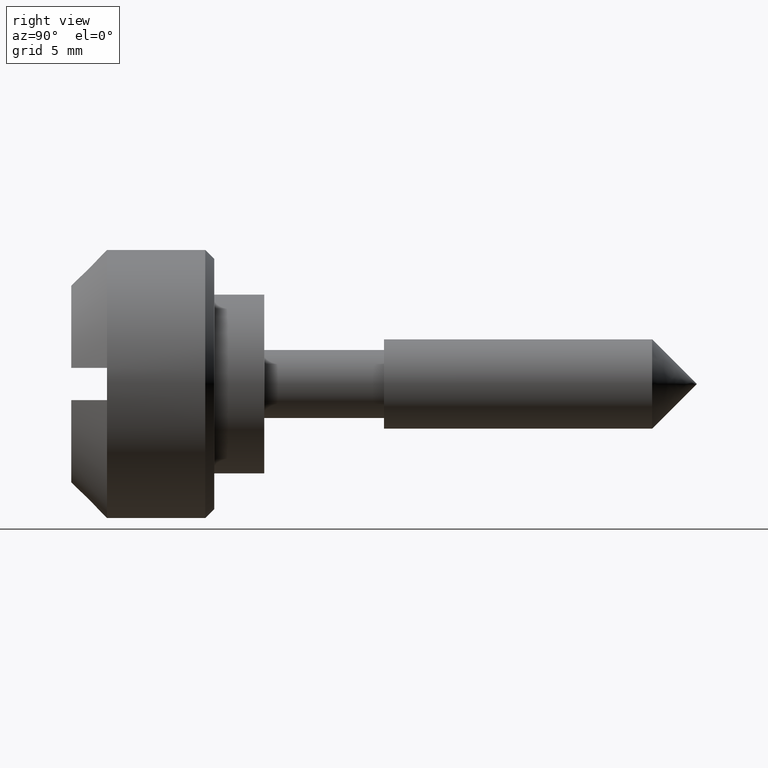
[diagram: clean part render]
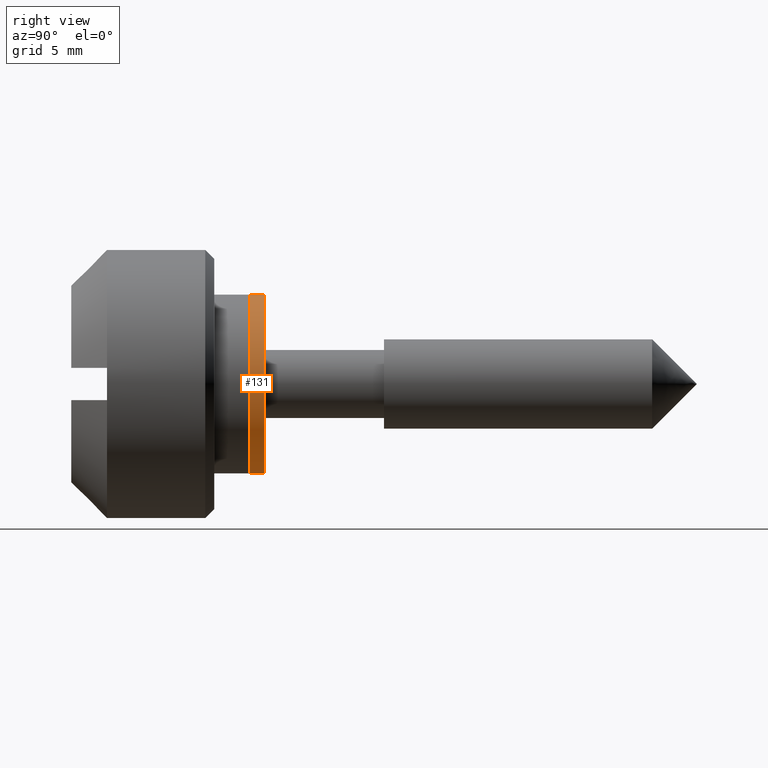
[diagram: same view with one face highlighted and labeled with its STEP entity id]
A machine part, right view. The second image highlights one B-rep face of the part: STEP entity #131.
In plain terms, the highlighted cylindrical surface (partial cylindrical patch) has radius 5 mm, axis along (0, 1, 0).
Its self-contained STEP definition (entity closure, byte-faithful):
#131=ADVANCED_FACE('',(#347),#346,.T.);
#346=CYLINDRICAL_SURFACE('',#679,5.00000000000E+00);
#347=FACE_OUTER_BOUND('',#680,.T.);
#676=CARTESIAN_POINT('',(0.00000000000E+00,1.00000000000E+03,0.00000000000E+00));
#677=DIRECTION('',(-0.00000000000E+00,1.00000000000E+00,-0.00000000000E+00));
#678=DIRECTION('',(1.22464679915E-16,0.00000000000E+00,-1.00000000000E+00));
#679=AXIS2_PLACEMENT_3D('',#676,#677,#678);
#680=EDGE_LOOP('',(#934,#935,#936,#937));
#934=ORIENTED_EDGE('',*,*,#1074,.F.);
#935=ORIENTED_EDGE('',*,*,#1078,.T.);
#936=ORIENTED_EDGE('',*,*,#1036,.T.);
#937=ORIENTED_EDGE('',*,*,#1079,.F.);
#1036=EDGE_CURVE('',#1192,#1193,#1194,.T.);
#1074=EDGE_CURVE('',#1440,#1439,#1447,.T.);
#1078=EDGE_CURVE('',#1440,#1192,#1472,.T.);
#1079=EDGE_CURVE('',#1439,#1193,#1478,.T.);
#1192=VERTEX_POINT('',#1817);
#1193=VERTEX_POINT('',#1818);
#1194=CIRCLE('',#1822,5.00000000000E+00);
#1439=VERTEX_POINT('',#1966);
#1440=VERTEX_POINT('',#1967);
#1447=CIRCLE('',#1975,5.00000000000E+00);
#1472=(BOUNDED_CURVE() B_SPLINE_CURVE(1,(#1987,#1988),.UNSPECIFIED.,.F.,.F.) B_SPLINE_CURVE_WITH_KNOTS((2,2),(8.33332935974E-02,9.16666633252E-01),.UNSPECIFIED.) CURVE() GEOMETRIC_REPRESENTATION_ITEM() RATIONAL_B_SPLINE_CURVE((1.00000000000E+00,1.00000000000E+00)) REPRESENTATION_ITEM('') );
#1478=(BOUNDED_CURVE() B_SPLINE_CURVE(1,(#1989,#1990),.UNSPECIFIED.,.F.,.F.) B_SPLINE_CURVE_WITH_KNOTS((2,2),(8.33333333334E-02,9.16666666667E-01),.UNSPECIFIED.) CURVE() GEOMETRIC_REPRESENTATION_ITEM() RATIONAL_B_SPLINE_CURVE((7.50000000000E-01,7.50000000000E-01)) REPRESENTATION_ITEM('') );
#1817=CARTESIAN_POINT('',(5.92118946467E-16,8.00000000000E-01,-5.00000000000E+00));
#1818=CARTESIAN_POINT('',(0.00000000000E+00,8.00000000000E-01,5.00000000000E+00));
#1819=CARTESIAN_POINT('',(0.00000000000E+00,8.00000000000E-01,0.00000000000E+00));
#1820=DIRECTION('',(-0.00000000000E+00,-1.00000000000E+00,0.00000000000E+00));
#1821=DIRECTION('',(-1.22460635382E-16,0.00000000000E+00,1.00000000000E+00));
#1822=AXIS2_PLACEMENT_3D('',#1819,#1820,#1821);
#1966=CARTESIAN_POINT('',(0.00000000000E+00,0.00000000000E+00,5.00000000000E+00));
#1967=CARTESIAN_POINT('',(5.92118946467E-16,0.00000000000E+00,-5.00000000000E+00));
#1972=CARTESIAN_POINT('',(0.00000000000E+00,0.00000000000E+00,0.00000000000E+00));
#1973=DIRECTION('',(-0.00000000000E+00,-1.00000000000E+00,0.00000000000E+00));
#1974=DIRECTION('',(-1.22460635382E-16,0.00000000000E+00,1.00000000000E+00));
#1975=AXIS2_PLACEMENT_3D('',#1972,#1973,#1974);
#1987=CARTESIAN_POINT('',(6.12323399574E-16,-3.81465210669E-08,-5.00000000000E+00));
#1988=CARTESIAN_POINT('',(6.12323399574E-16,7.99999967922E-01,-5.00000000000E+00));
#1989=CARTESIAN_POINT('',(-2.96059473233E-16,0.00000000000E+00,5.00000000000E+00));
#1990=CARTESIAN_POINT('',(-2.96059473233E-16,8.00000000000E-01,5.00000000000E+00));